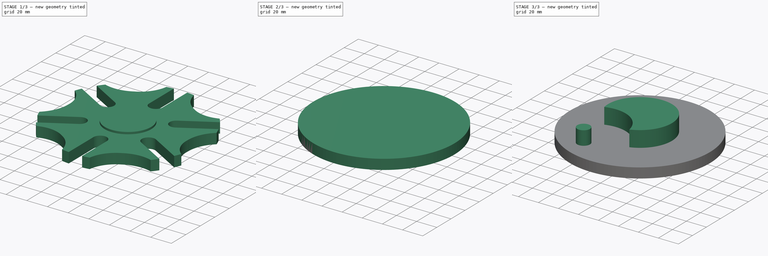
[diagram: build sequence overview — one tinted view per stage of 3, left to right]
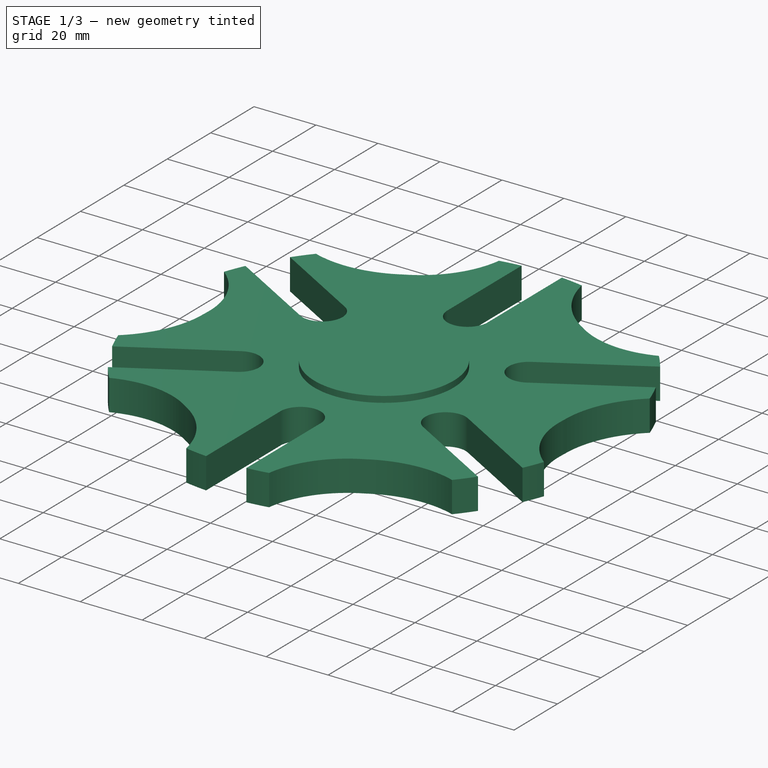
[diagram: stage 1 of 3 — iso view after this stage's code; geometry added in this stage tinted green]
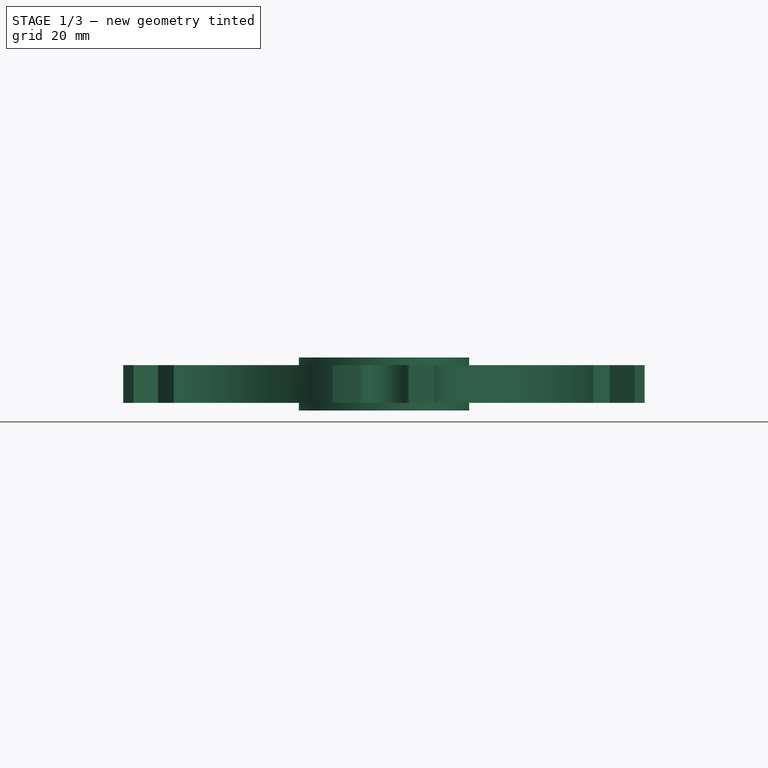
[diagram: stage 1 of 3 — front view after this stage's code; geometry added in this stage tinted green]
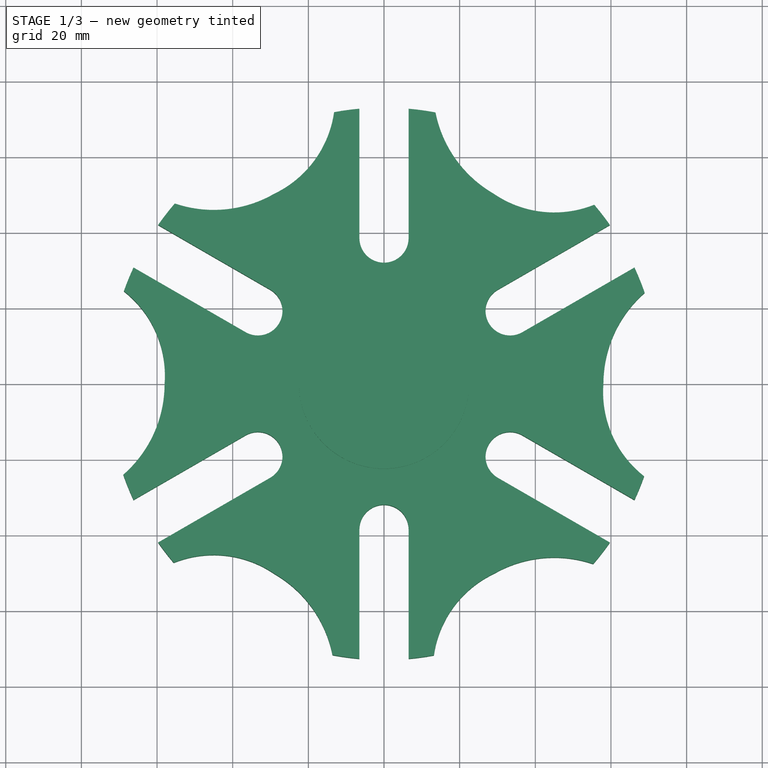
[diagram: stage 1 of 3 — top view after this stage's code; geometry added in this stage tinted green]
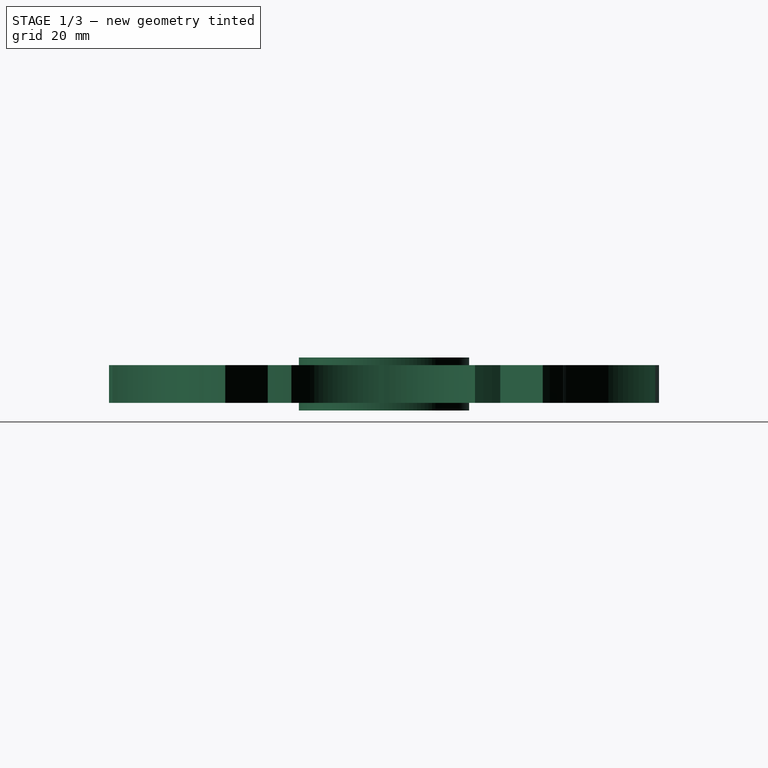
[diagram: stage 1 of 3 — right view after this stage's code; geometry added in this stage tinted green]
FCSTD DOCUMENT  (FreeCAD 0.17R10064 (Git))
Label: CAD_Challenge17_Geneva
License: CreativeCommons Attribution-NonCommercial
LicenseURL: http://creativecommons.org/licenses/by-nc/4.0/
objects: Sketcher::SketchObject×7, PartDesign::Pad×5, PartDesign::Pocket×2, PartDesign::Body×2, App::Part×2, PartDesign::PolarPattern×1
note: 24 computed .brp shape members not serialized (recipe doc carries the construction recipe); baked Part::Feature solids carry a one-line shape summary decoded from their .brp

FEATURE [Sketcher::SketchObject] Sketch
  MapMode = 5
  Support = -> [XY_Plane001]
  sketch-geometry (13):
    g0: ArcOfCircle CenterX=90 CenterY=0 CenterZ=0 NormalX=0 NormalY=0 NormalZ=1 Radius=32 StartAngle=2.29009 EndAngle=3.14159
    g1: LineSegment StartX=66.2187 StartY=30.7259 StartZ=0 EndX=36.592 EndY=13.6208 EndZ=0
    g2: ArcOfCircle CenterX=33.342 CenterY=19.25 CenterZ=0 NormalX=0 NormalY=0 NormalZ=1 Radius=6.5 StartAngle=2.09439 EndAngle=5.23599
    g3: LineSegment StartX=30.092 StartY=24.8792 StartZ=0 EndX=59.7187 EndY=41.9842 EndZ=0
    g4: LineSegment StartX=0 StartY=0 StartZ=0 EndX=58 EndY=0 EndZ=0
    g5: Circle [constr] CenterX=0 CenterY=0 CenterZ=0 NormalX=0 NormalY=0 NormalZ=1 Radius=38.5
    g6: Circle [constr] CenterX=0 CenterY=0 CenterZ=0 NormalX=0 NormalY=0 NormalZ=1 Radius=73
    g7: LineSegment [constr] StartX=63.2199 StartY=36.5 StartZ=0 EndX=33.342 EndY=19.25 EndZ=0
    g8: Circle [constr] CenterX=0 CenterY=0 CenterZ=0 NormalX=0 NormalY=0 NormalZ=1 Radius=90
    g9: LineSegment StartX=0 StartY=0 StartZ=0 EndX=29 EndY=50.2295 EndZ=0
    g10: ArcOfCircle CenterX=45.0106 CenterY=73.5844 CenterZ=0 NormalX=0 NormalY=0 NormalZ=1 Radius=28.316 StartAngle=4.11144 EndAngle=5.09521
    g11: ArcOfCircle CenterX=0 CenterY=0 CenterZ=0 NormalX=0 NormalY=0 NormalZ=1 Radius=73 StartAngle=0.336052 EndAngle=0.43444
    g12: ArcOfCircle CenterX=0 CenterY=0 CenterZ=0 NormalX=0 NormalY=0 NormalZ=1 Radius=73 StartAngle=0.612758 EndAngle=0.70521
  constraints (37):
    c: Tangent(g1,g2) = 1.5708
    c: Coincident(g2,g3)
    c: PointOnObject(g4,g0)
    c: Coincident(g0,g4)
    c: Horizontal(g4)
    c: Perpendicular(g0,g4)
    c: Radius(g0) = 32
    c: Parallel(g1,g3)
    c: Coincident(g5,g-1)
    c: Radius(g5) = 38.5
    c: PointOnObject(g2,g5)
    c: Coincident(g6,g-1)
    c: Radius(g6) = 73
    c: PointOnObject(g1,g6)
    c: PointOnObject(g3,g6)
    c: Angle(g1,g-1) = 2.61799
    c: PointOnObject(g7,g6)
    c: PointOnObject(g7,g5)
    c: PointOnObject(g-1,g7)
    c: Parallel(g1,g7)
    c: PointOnObject(g2,g7)
    c: Coincident(g8,g-1)
    c: PointOnObject(g0,g8)
    c: Coincident(g9,g-1)
    c: Coincident(g9,g10)
    c: Coincident(g4,g-1)
    c: Radius(g8) = 90
    c: Radius(g2) = 6.5
    c: Tangent(g2,g3)
    c: Equal(g4,g9)
    c: Symmetric(g0,g9,g7)
    c: Coincident(g11,g1)
    c: Coincident(g11,g0)
    c: Coincident(g11,g-1)
    c: Coincident(g12,g10)
    c: Coincident(g12,g3)
    c: Coincident(g12,g-1)
FEATURE [PartDesign::Pad] Pad
  Length = 10
  Length2 = 100
  Midplane = true
  Profile = -> Sketch
  Type = 0
FEATURE [Sketcher::SketchObject] Sketch001
  MapMode = 5
  Support = -> [XY_Plane001]
  sketch-geometry (1):
    g0: Circle CenterX=0 CenterY=0 CenterZ=0 NormalX=0 NormalY=0 NormalZ=1 Radius=22.5
  constraints (2):
    c: Coincident(g0,g-1)
    c: Radius(g0) = 22.5
FEATURE [PartDesign::Pad] Pad001
  BaseFeature = -> Pad
  Length = 14
  Length2 = 100
  Midplane = true
  Profile = -> Sketch001
  Type = 0
FEATURE [PartDesign::PolarPattern] PolarPattern
  Angle = 360
  Axis = -> Sketch [N_Axis]
  BaseFeature = -> Pad001
  Occurrences = 6
  Originals = -> [Pad]
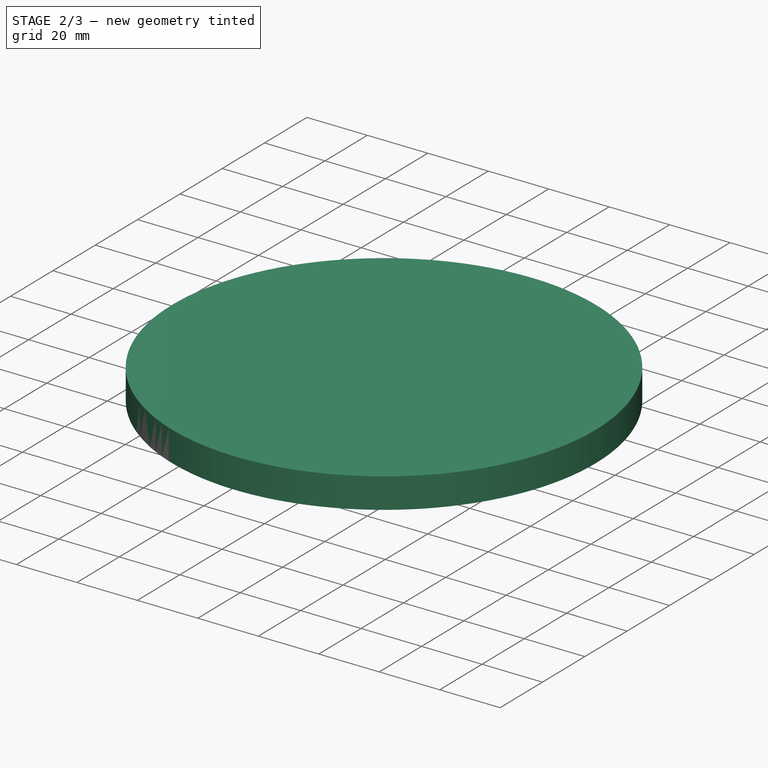
[diagram: stage 2 of 3 — iso view after this stage's code; geometry added in this stage tinted green]
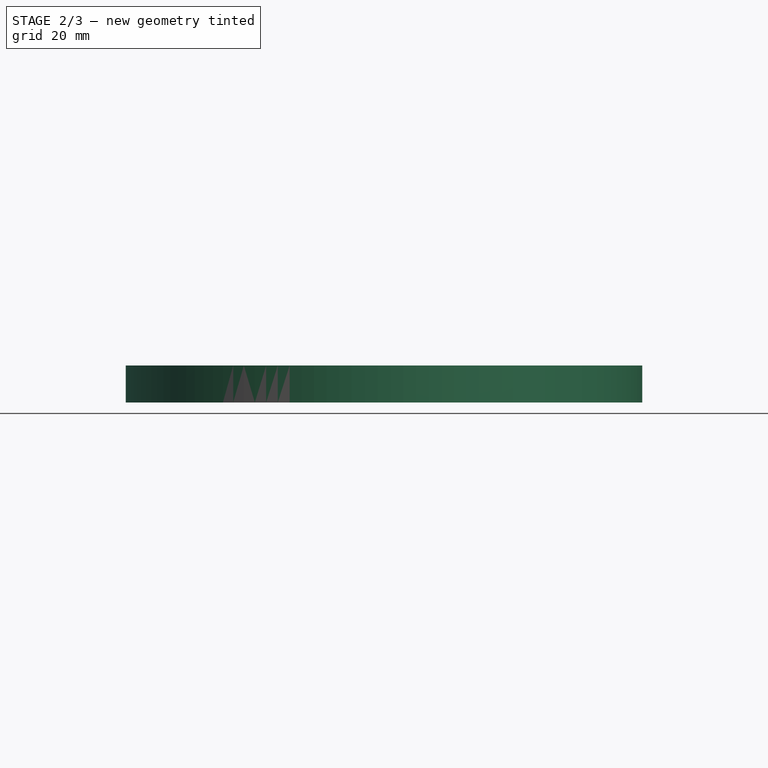
[diagram: stage 2 of 3 — front view after this stage's code; geometry added in this stage tinted green]
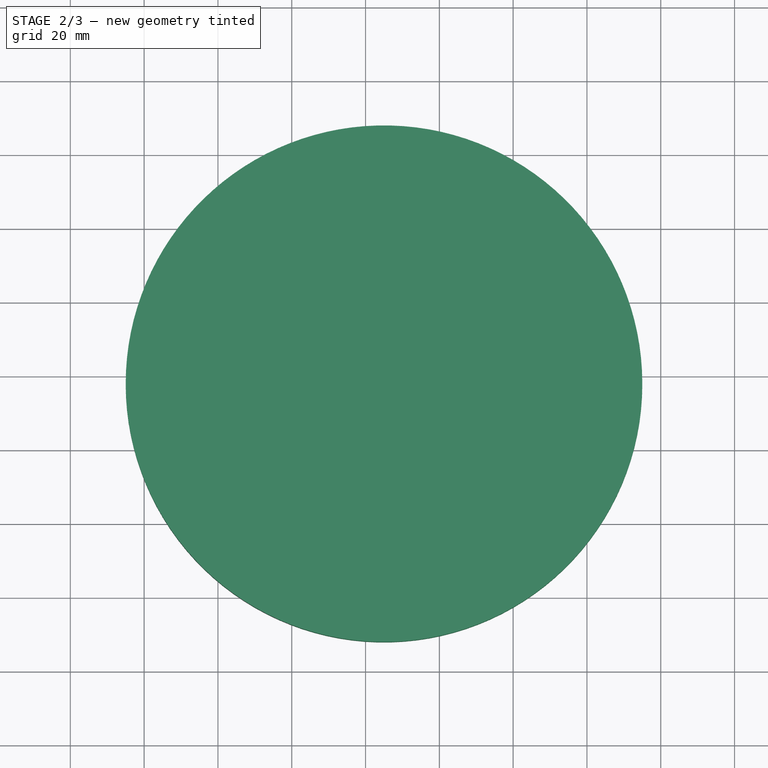
[diagram: stage 2 of 3 — top view after this stage's code; geometry added in this stage tinted green]
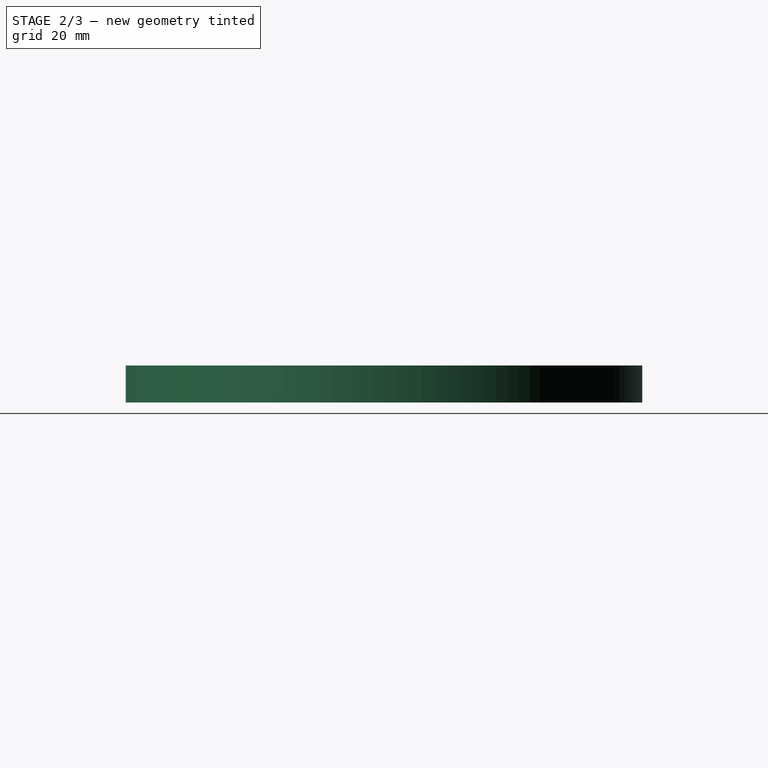
[diagram: stage 2 of 3 — right view after this stage's code; geometry added in this stage tinted green]
FEATURE [Sketcher::SketchObject] Sketch002
  MapMode = 5
  Placement = pos=(0,0,7) rot=(0,0,1;0rad)
  Support = -> [PolarPattern]
  sketch-geometry (4):
    g0: ArcOfCircle CenterX=0 CenterY=0 CenterZ=0 NormalX=0 NormalY=0 NormalZ=1 Radius=12.7 StartAngle=1.82958 EndAngle=7.5952
    g1: LineSegment StartX=-3.25 StartY=15.5271 StartZ=0 EndX=3.25 EndY=15.5271 EndZ=0
    g2: LineSegment StartX=3.25 StartY=15.5271 StartZ=0 EndX=3.25 EndY=12.2771 EndZ=0
    g3: LineSegment StartX=-3.25 StartY=12.2771 StartZ=0 EndX=-3.25 EndY=15.5271 EndZ=0
  constraints (12):
    c: Coincident(g0,g-1)
    c: Coincident(g1,g2)
    c: Coincident(g3,g1)
    c: Horizontal(g1)
    c: Vertical(g2)
    c: Vertical(g3)
    c: Coincident(g3,g0)
    c: Coincident(g2,g0)
    c: Symmetric(g1,g1,g-2)
    c: Radius(g0) = 12.7
    c: Distance(g1) = 6.5
    c: Distance(g2) = 3.25
FEATURE [PartDesign::Pocket] Pocket
  BaseFeature = -> PolarPattern
  Length = 16
  Profile = -> Sketch002
  Type = 0
FEATURE [PartDesign::Body] Body
  Group = -> [Pad,Pad001,Sketch,PolarPattern,Sketch002,Pocket,Sketch001]
  Origin = -> BodyOrigin
  Tip = -> PolarPattern
FEATURE [App::Part] Part  label="GenevaCam"
  Group = -> [BodyOrigin,Body]
  License = CC BY 3.0
  LicenseURL = http://creativecommons.org/licenses/by/3.0/
  Origin = -> PartOrigin
  Placement = pos=(0,0,0) rot=(0,0,1;0.523599rad)
FEATURE [Sketcher::SketchObject] Sketch003
  ExternalGeometry = -> [Pocket]
  MapMode = 5
  Support = -> [XY_Plane002]
  sketch-geometry (1):
    g0: Circle CenterX=45 CenterY=77.9423 CenterZ=0 NormalX=0 NormalY=0 NormalZ=1 Radius=70
  constraints (2):
    c: Radius(g0) = 70
    c: Coincident(g0,g-3)
FEATURE [PartDesign::Pad] Pad002
  Length = 10
  Length2 = 100
  Profile = -> Sketch003
  Reversed = true
  Type = 0
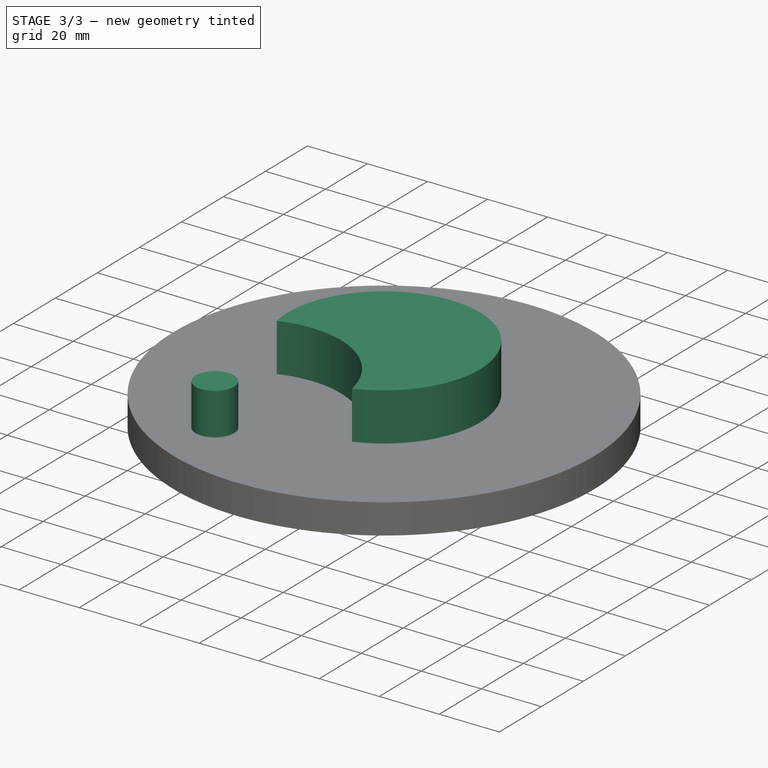
[diagram: stage 3 of 3 — iso view after this stage's code; geometry added in this stage tinted green]
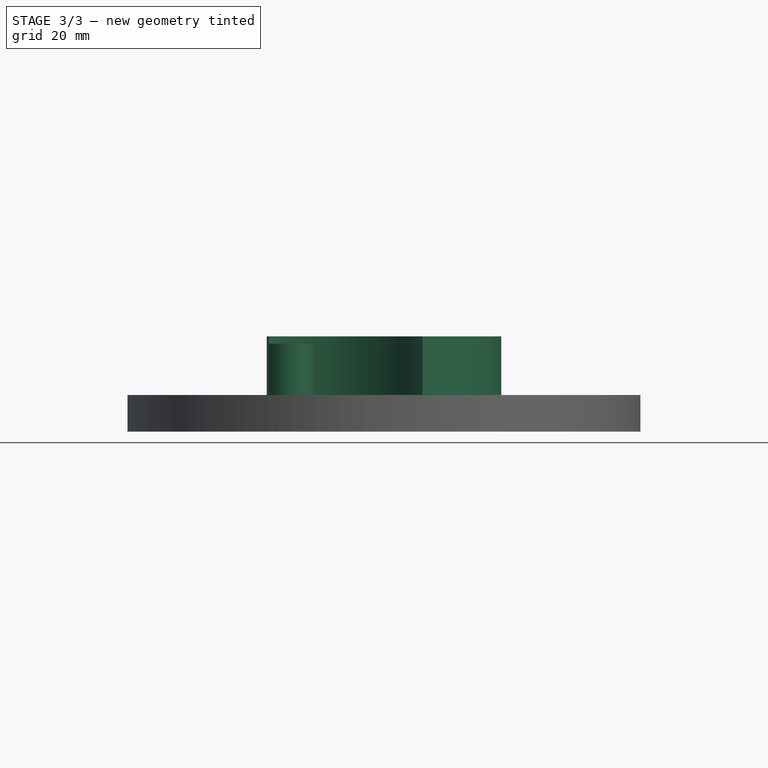
[diagram: stage 3 of 3 — front view after this stage's code; geometry added in this stage tinted green]
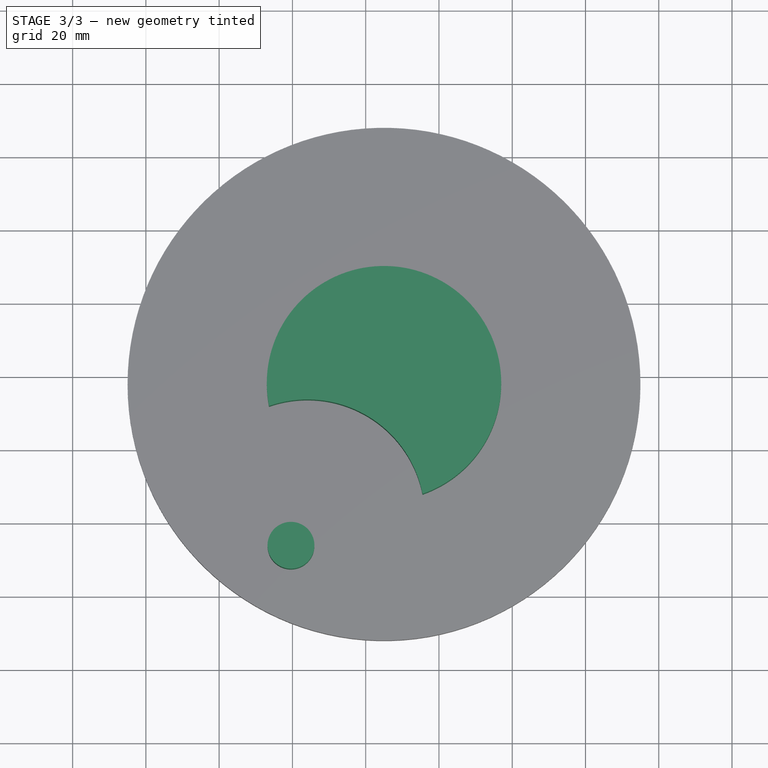
[diagram: stage 3 of 3 — top view after this stage's code; geometry added in this stage tinted green]
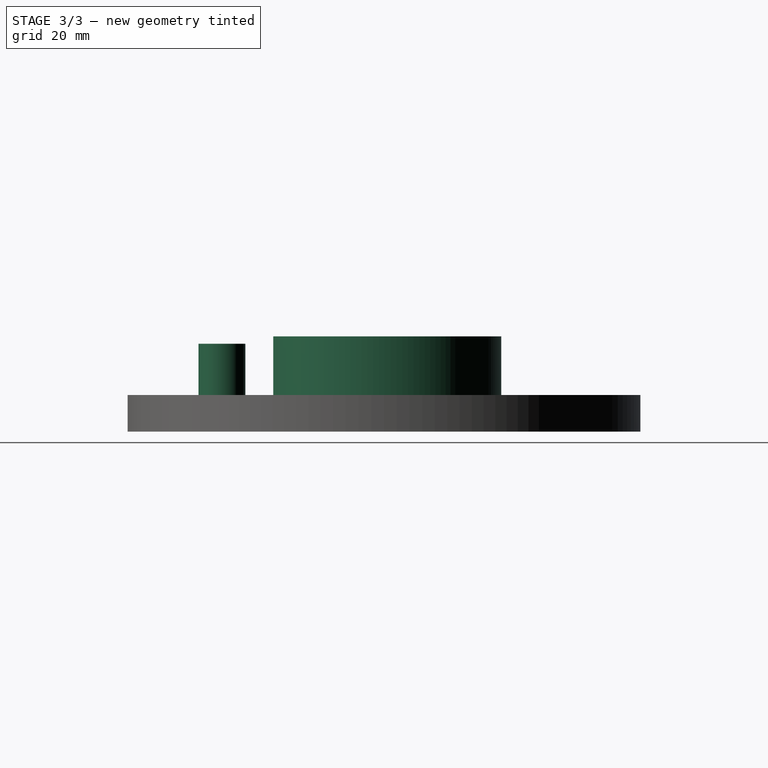
[diagram: stage 3 of 3 — right view after this stage's code; geometry added in this stage tinted green]
FEATURE [Sketcher::SketchObject] Sketch004
  ExternalGeometry = -> [Pad002,Pocket]
  MapMode = 5
  Support = -> [Pad002]
  sketch-geometry (2):
    g0: ArcOfCircle CenterX=45 CenterY=77.9423 CenterZ=0 NormalX=0 NormalY=0 NormalZ=1 Radius=32 StartAngle=5.04708 EndAngle=9.62047
    g1: ArcOfCircle CenterX=24.1219 CenterY=41.4955 CenterZ=0 NormalX=0 NormalY=0 NormalZ=1 Radius=32 StartAngle=0.195696 EndAngle=1.90548
  constraints (7):
    c: Coincident(g0,g-3)
    c: Radius(g0) = 32
    c: PointOnObject(g-4,g1)
    c: PointOnObject(g-5,g1)
    c: Equal(g1,g0)
    c: Coincident(g0,g1)
    c: Coincident(g0,g1)
FEATURE [PartDesign::Pad] Pad003
  BaseFeature = -> Pad002
  Length = 16
  Length2 = 100
  Profile = -> Sketch004
  Type = 0
FEATURE [Sketcher::SketchObject] Sketch005
  ExternalGeometry = -> [Pocket,Pad003]
  MapMode = 5
  Support = -> [Pad003]
  sketch-geometry (3):
    g0: Circle CenterX=19.6002 CenterY=33.717 CenterZ=0 NormalX=0 NormalY=0 NormalZ=1 Radius=6.4
    g1: LineSegment [constr] StartX=0 StartY=0 StartZ=0 EndX=24.1219 EndY=41.4955 EndZ=0
    g2: Circle [constr] CenterX=0 CenterY=0 CenterZ=0 NormalX=0 NormalY=0 NormalZ=1 Radius=39
  constraints (7):
    c: Radius(g0) = 6.4
    c: Coincident(g1,g-1)
    c: Coincident(g1,g-4)
    c: PointOnObject(g0,g1)
    c: Coincident(g2,g-1)
    c: PointOnObject(g0,g2)
    c: Radius(g2) = 39
FEATURE [PartDesign::Pad] Pad004
  BaseFeature = -> Pad003
  Length = 14
  Length2 = 100
  Profile = -> Sketch005
  Type = 0
FEATURE [Sketcher::SketchObject] Sketch006
  ExternalGeometry = -> [Pad004]
  MapMode = 5
  Placement = pos=(0,0,16) rot=(0,0,1;0rad)
  Support = -> [Pad004]
  sketch-geometry (1):
    g0: Circle CenterX=0 CenterY=0 CenterZ=0 NormalX=0 NormalY=0 NormalZ=1 Radius=5
  constraints (2):
    c: Coincident(g0,g-3)
    c: Radius(g0) = 5
FEATURE [PartDesign::Pocket] Pocket001
  BaseFeature = -> Pad004
  Length = 5
  Profile = -> Sketch006
  Type = 1
FEATURE [PartDesign::Body] Body001
  Group = -> [Sketch003,Pad002,Sketch004,Pad003,Sketch005,Pad004,Sketch006,Pocket001]
  Origin = -> Body001Origin
  Tip = -> Pocket001
FEATURE [App::Part] Part001  label="Driver"
  Group = -> [Body001]
  License = CC BY 3.0
  LicenseURL = http://creativecommons.org/licenses/by/3.0/
  Origin = -> Part001Origin
  Placement = pos=(0,0,-6) rot=(0,0,1;0rad)
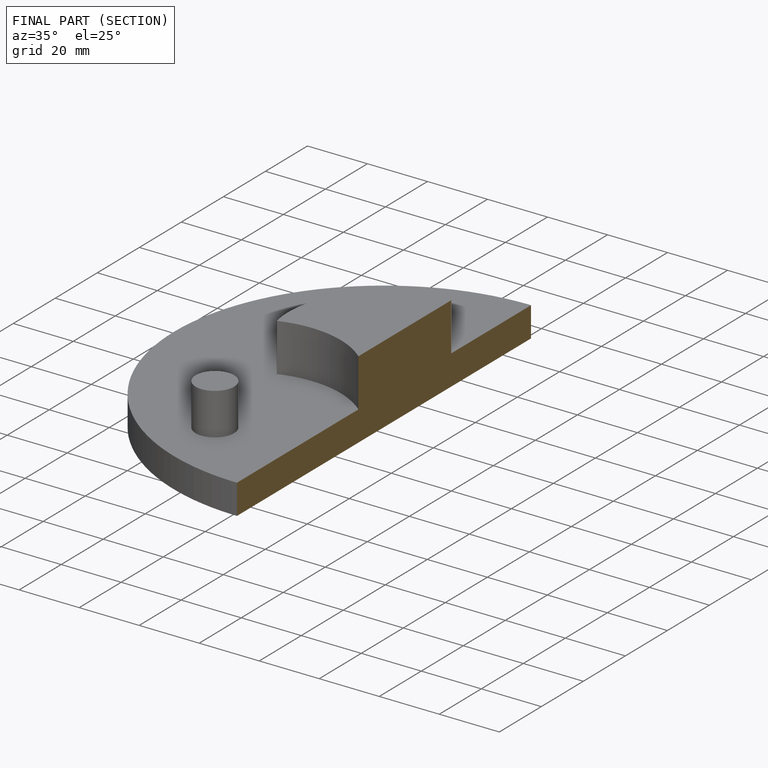
[diagram: finished part — half-section view (interior)]
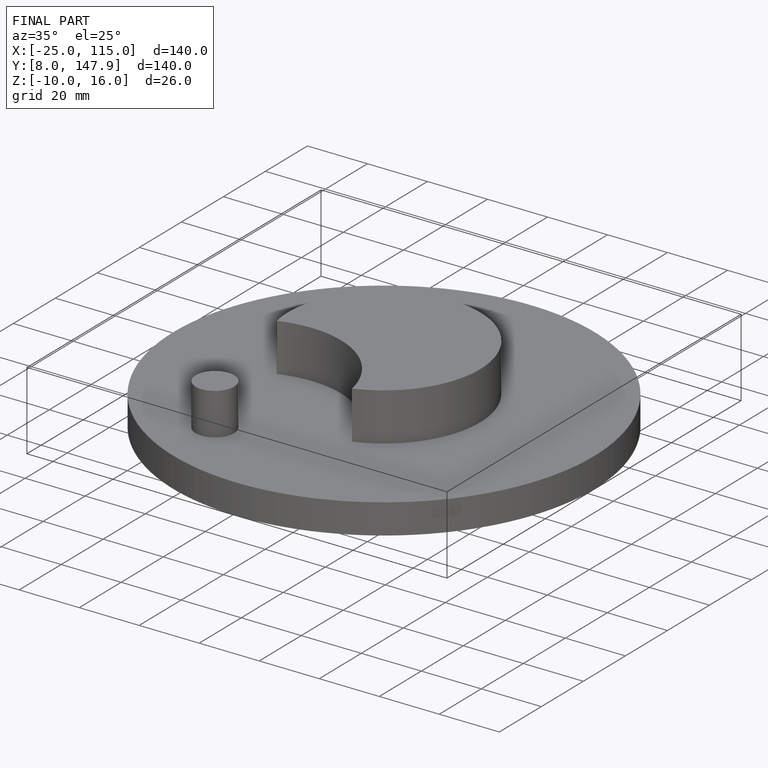
[diagram: finished part — iso view with bounding-box wireframe]
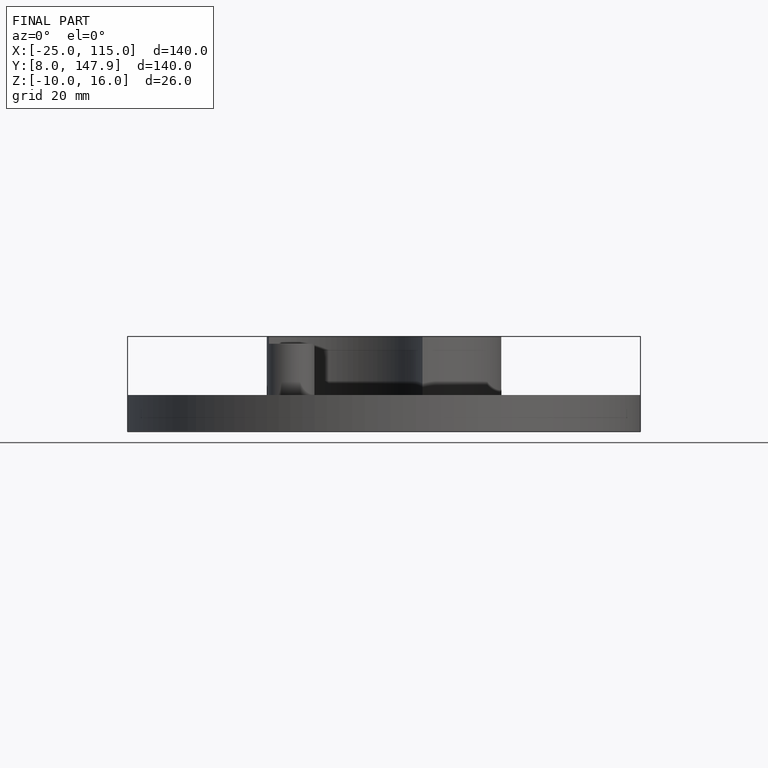
[diagram: finished part — front view with bounding-box wireframe]
